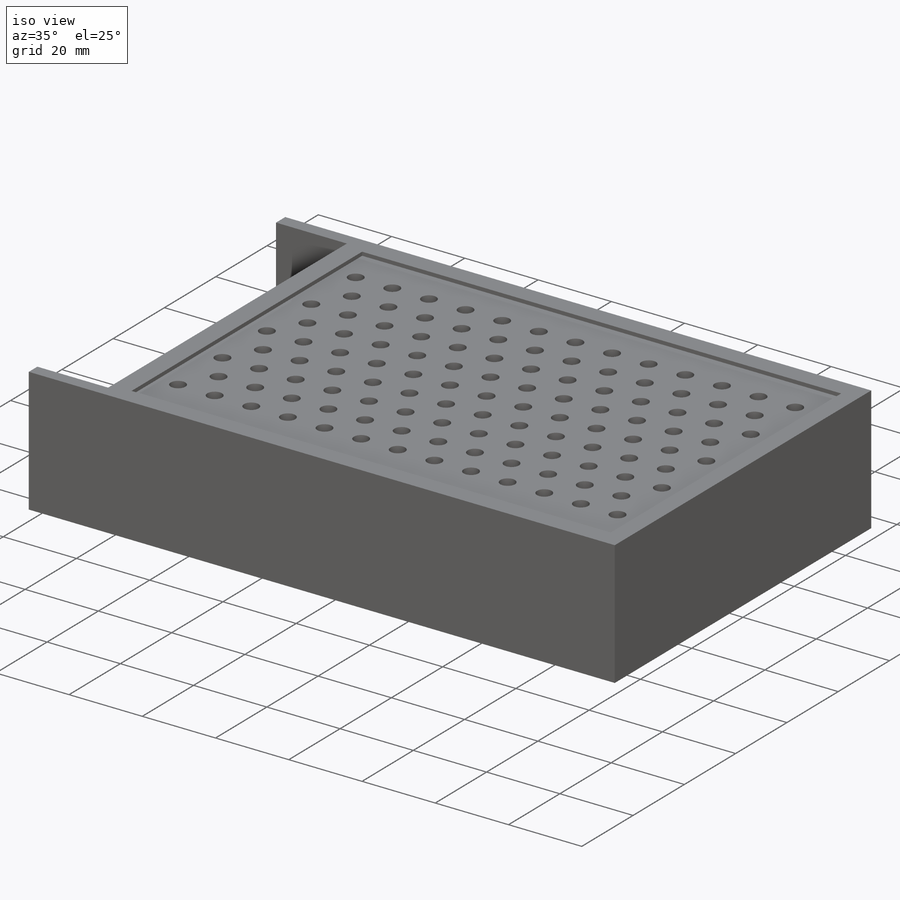
[diagram: iso view]
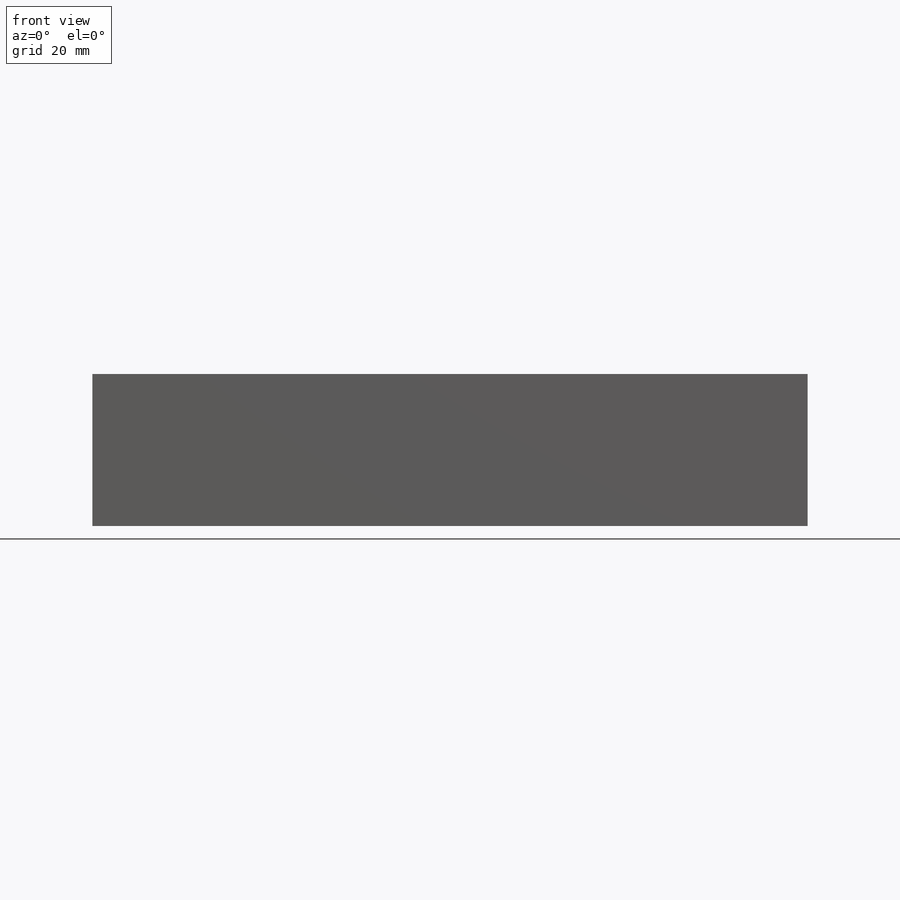
[diagram: front view]
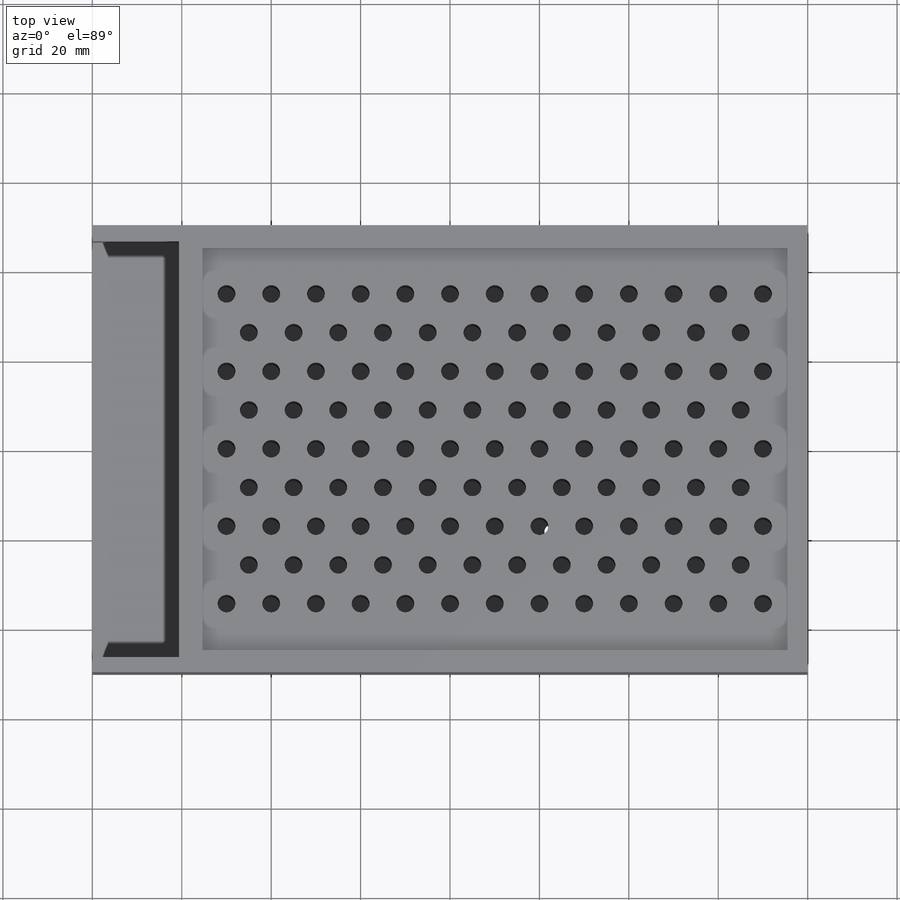
[diagram: top view]
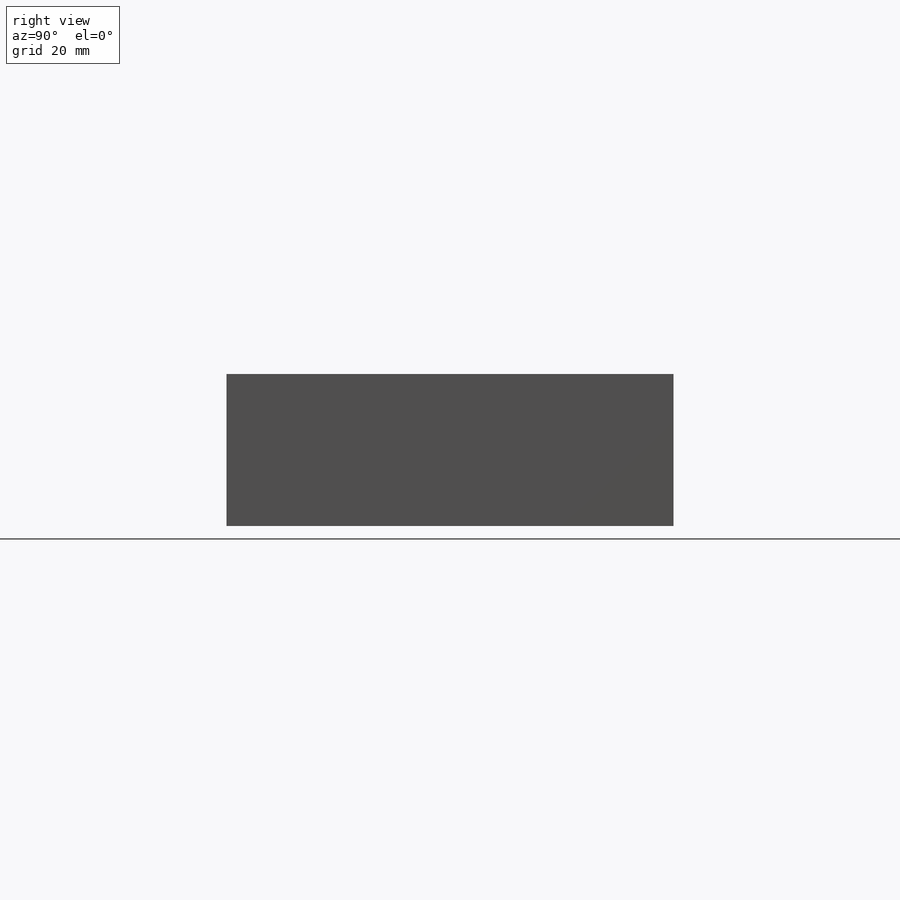
[diagram: right view]
SOLIDWORKS PART (.sldprt)
format: sldprt  version: not decoded by parser v0  size: 374,784 bytes
history: native  units: mm
features: sketch x5, plane x3, cut_extrude x3, extrude x2, material x1 (+13 scaffold rows collapsed)
feature tree (27):
  scaffold x13  (default folders/planes/origin — collapsed)
  material  "Material <não especificado>"
  plane  "Plano frontal"
  plane  "Plano superior"
  plane  "Plano direito"
  sketch  "Esboço1"  dims[D1=160.0mm D2=100.0mm]
  extrude  "Ressalto-extrusão1"  Depth=33mm
  sketch  "Esboço2"
  cut_extrude  "Corte-extrusão1"  Depth=20mm
  sketch  "Esboço3"
  cut_extrude  "Corte-extrusão2"  Depth=1mm
  sketch  "Esboço4"  dims[D1=4.0mm]
  cut_extrude  "Corte-extrusão3"  Depth=10mm
  sketch  "Esboço5"  dims[c1.D1=3.0mm c1.D2=3.0mm c1.D3=3.0mm c1.D4=3.0mm c1.D5=3.0mm c2.D3=3.0mm c2.D5=3.0mm c3.D3=24.0mm c3.D4=75.6mm c3.D5=30.5mm c4.D3=24.0mm c4.D5=30.5mm]
  extrude  "Ressalto-extrusão2"  Depth=1mm
decode coverage: 8 of 10 modeling features carry decoded parameters
note: suppression state not decoded; provenance and decode notes live in map.json
